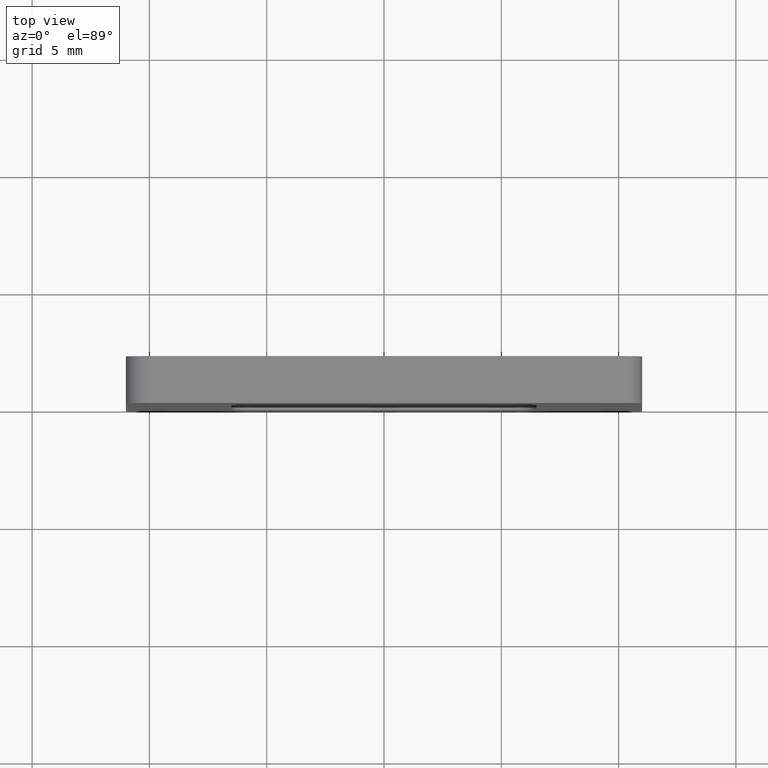
[diagram: clean part render]
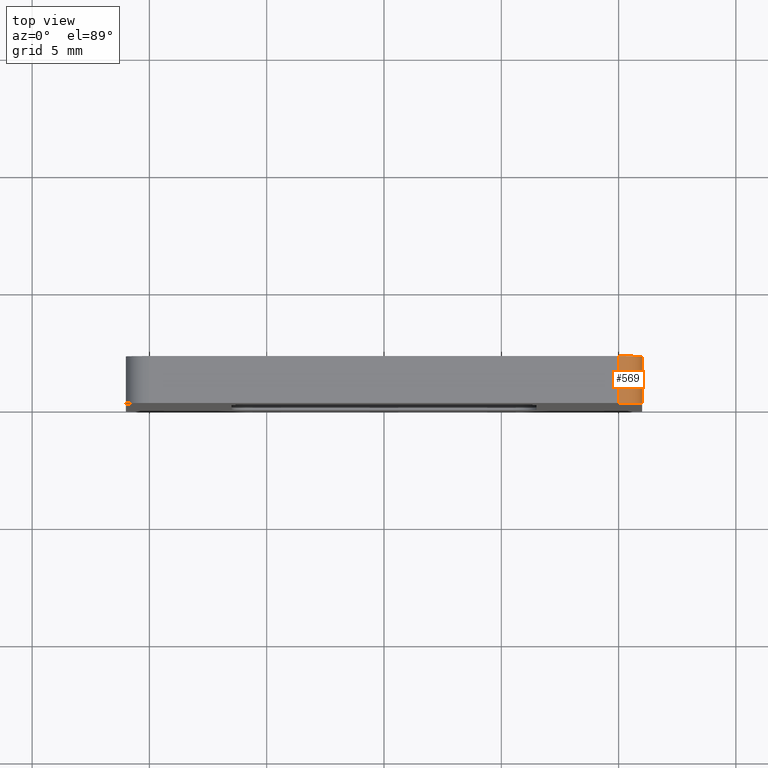
[diagram: same view with one face highlighted and labeled with its STEP entity id]
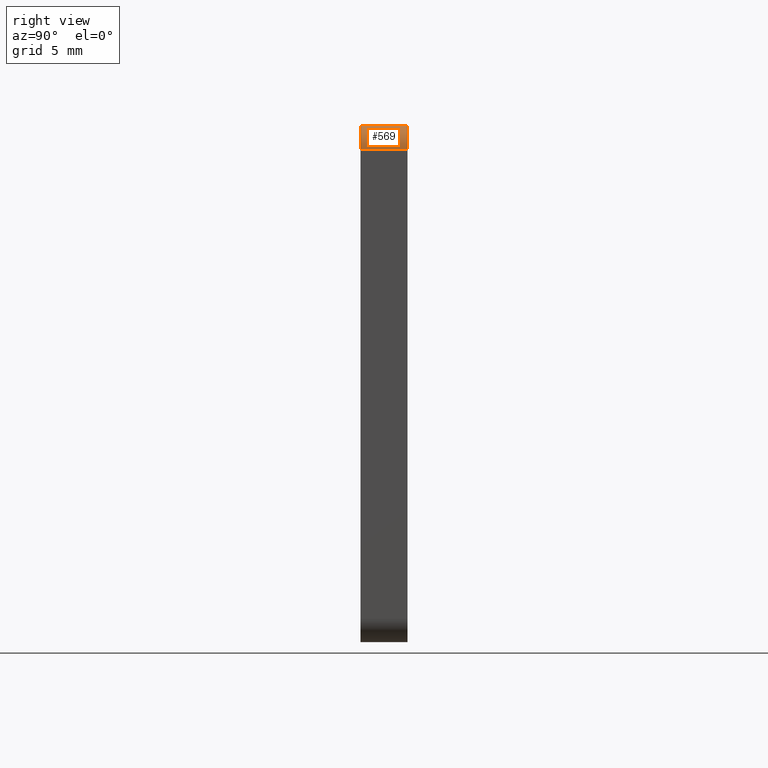
[diagram: same view with one face highlighted and labeled with its STEP entity id]
A machine part, top view. The second image highlights one B-rep face of the part: STEP entity #569.
A second angle (right view) of the same face is appended — the face is thin or edge-on in the first view.
In plain terms, the highlighted face is a freeform B-spline surface patch.
Its self-contained STEP definition (entity closure, byte-faithful):
#334=CARTESIAN_POINT('',(10.0,0.0,11.0));
#335=VERTEX_POINT('',#334);
#402=CARTESIAN_POINT('',(11.0,0.0,10.0));
#403=VERTEX_POINT('',#402);
#409=CARTESIAN_POINT('',(11.0,0.0,10.0));
#410=CARTESIAN_POINT('',(11.0,0.0,11.0));
#411=CARTESIAN_POINT('',(10.0,0.0,11.0));
#419=(BOUNDED_CURVE()B_SPLINE_CURVE(2,(#409,#410,#411),.UNSPECIFIED.,.F.,.U.)CURVE()GEOMETRIC_REPRESENTATION_ITEM()QUASI_UNIFORM_CURVE()RATIONAL_B_SPLINE_CURVE((1.0,0.707106781186548,1.0))REPRESENTATION_ITEM(''));
#420=EDGE_CURVE('',#403,#335,#419,.T.);
#440=CARTESIAN_POINT('',(10.0,2.0,11.0));
#441=VERTEX_POINT('',#440);
#449=CARTESIAN_POINT('',(11.0,2.0,10.0));
#450=VERTEX_POINT('',#449);
#451=CARTESIAN_POINT('',(11.0,2.0,10.0));
#452=CARTESIAN_POINT('',(11.0,2.000000000000000,11.0));
#453=CARTESIAN_POINT('',(10.0,2.0,11.0));
#461=(BOUNDED_CURVE()B_SPLINE_CURVE(2,(#451,#452,#453),.UNSPECIFIED.,.F.,.U.)CURVE()GEOMETRIC_REPRESENTATION_ITEM()QUASI_UNIFORM_CURVE()RATIONAL_B_SPLINE_CURVE((1.0,0.707106781186548,1.0))REPRESENTATION_ITEM(''));
#462=EDGE_CURVE('',#450,#441,#461,.T.);
#541=CARTESIAN_POINT('',(9.991273464501626,2.050000000000000,10.999961923064170));
#542=CARTESIAN_POINT('',(9.991273464501626,-0.051250000000000,10.999961923064170));
#543=CARTESIAN_POINT('',(11.063601342011754,2.049999999999999,11.009319986679547));
#544=CARTESIAN_POINT('',(11.063601342011754,-0.051250000000000,11.009319986679547));
#545=CARTESIAN_POINT('',(10.998134798421869,2.050000000000000,9.938951460465143));
#546=CARTESIAN_POINT('',(10.998134798421869,-0.051250000000000,9.938951460465143));
#554=(BOUNDED_SURFACE()B_SPLINE_SURFACE(1,2,((#541,#543,#545),(#542,#544,#546)),.UNSPECIFIED.,.F.,.F.,.U.)B_SPLINE_SURFACE_WITH_KNOTS((2,2),(3,3),(0.0,2.101250000000000),(0.0,1.0),.UNSPECIFIED.)GEOMETRIC_REPRESENTATION_ITEM()RATIONAL_B_SPLINE_SURFACE(((1.0,0.681998360062499,1.0),(1.0,0.681998360062499,1.0)))REPRESENTATION_ITEM('')SURFACE());
#555=ORIENTED_EDGE('',*,*,#420,.F.);
#556=CARTESIAN_POINT('',(11.0,2.0,10.0));
#557=CARTESIAN_POINT('',(11.0,0.0,10.0));
#558=QUASI_UNIFORM_CURVE('',1,(#556,#557),.UNSPECIFIED.,.F.,.U.);
#559=EDGE_CURVE('',#450,#403,#558,.T.);
#560=ORIENTED_EDGE('',*,*,#559,.F.);
#561=ORIENTED_EDGE('',*,*,#462,.T.);
#562=CARTESIAN_POINT('',(10.0,2.0,11.0));
#563=CARTESIAN_POINT('',(10.0,0.0,11.0));
#564=QUASI_UNIFORM_CURVE('',1,(#562,#563),.UNSPECIFIED.,.F.,.U.);
#565=EDGE_CURVE('',#441,#335,#564,.T.);
#566=ORIENTED_EDGE('',*,*,#565,.T.);
#567=EDGE_LOOP('',(#555,#560,#561,#566));
#568=FACE_OUTER_BOUND('',#567,.T.);
#569=ADVANCED_FACE('',(#568),#554,.T.);